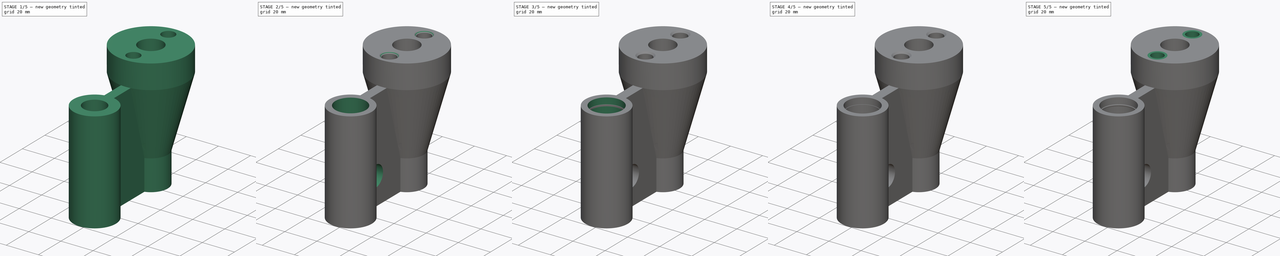
[diagram: build sequence overview — one tinted view per stage of 5, left to right]
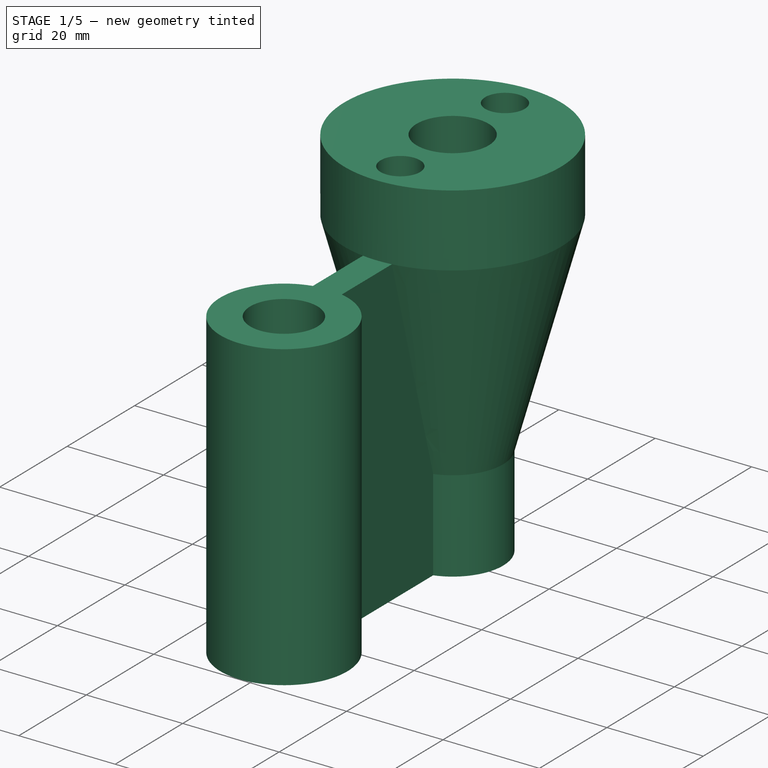
[diagram: stage 1 of 5 — iso view after this stage's code; geometry added in this stage tinted green]
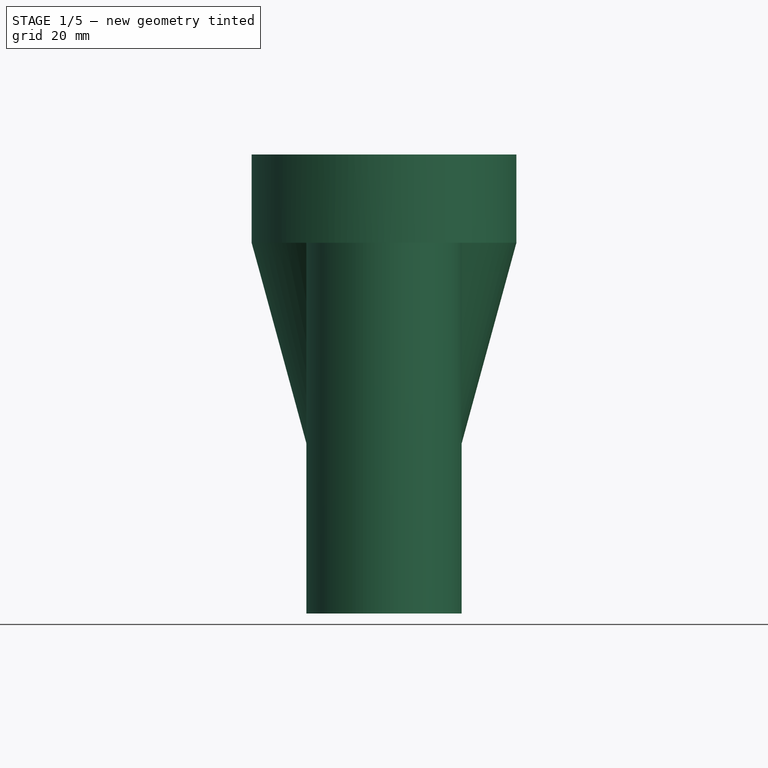
[diagram: stage 1 of 5 — front view after this stage's code; geometry added in this stage tinted green]
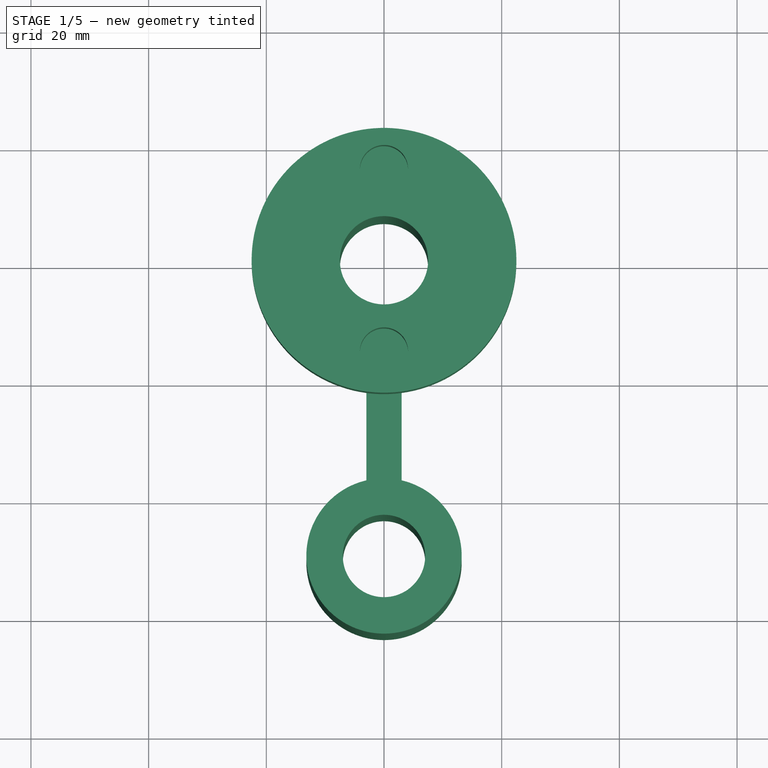
[diagram: stage 1 of 5 — top view after this stage's code; geometry added in this stage tinted green]
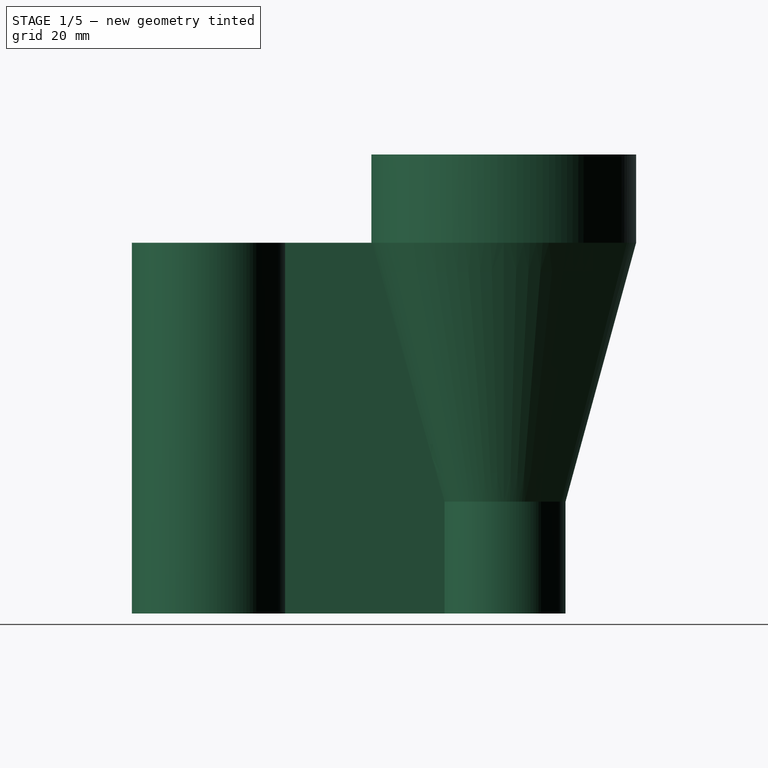
[diagram: stage 1 of 5 — right view after this stage's code; geometry added in this stage tinted green]
FCSTD DOCUMENT  (FreeCAD 0.16R5480 (Git))
Label: carriage_base_olive_idler
License: All rights reserved
LicenseURL: http://en.wikipedia.org/wiki/All_rights_reserved
objects: Sketcher::SketchObject×17, PartDesign::Pocket×8, PartDesign::Pad×6, PartDesign::Chamfer×3, PartDesign::Draft×2, PartDesign::Revolution×1
note: 52 computed .brp shape members not serialized (recipe doc carries the construction recipe); baked Part::Feature solids carry a one-line shape summary decoded from their .brp

FEATURE [Sketcher::SketchObject] Sketch
  Placement = pos=(0,0,0) rot=(1,0,0;1.5708rad)
  sketch-geometry (6):
    g0: LineSegment StartX=0 StartY=78 StartZ=0 EndX=22.5 EndY=78 EndZ=0
    g1: LineSegment StartX=22.5 StartY=78 StartZ=0 EndX=22.5 EndY=63 EndZ=0
    g2: LineSegment StartX=22.5 StartY=63 StartZ=0 EndX=10.5 EndY=19 EndZ=0
    g3: LineSegment StartX=10.5 StartY=0 StartZ=0 EndX=0 EndY=0 EndZ=0
    g4: LineSegment StartX=0 StartY=78 StartZ=0 EndX=0 EndY=0 EndZ=0
    g5: LineSegment StartX=10.5 StartY=19 StartZ=0 EndX=10.5 EndY=0 EndZ=0
  constraints (19):
    c: Vertical(g4)
    c: Vertical(g1)
    c: PointOnObject(g4,g-2)
    c: Coincident(g4,g-1)
    c: Coincident(g0,g4)
    c: Horizontal(g0)
    c: Coincident(g0,g1)
    c: Distance(g1) = 15
    c: Horizontal(g3)
    c: Coincident(g3,g4)
    c: PointOnObject(g3,g5)
    c: Vertical(g5)
    c: Coincident(g3,g5)
    c: Coincident(g2,g5)
    c: DistanceY(g4) = -78
    c: DistanceY(g5) = -19
    c: DistanceX(g0) = 22.5
    c: Distance(g3) = 10.5
    c: Coincident(g1,g2)
FEATURE [PartDesign::Revolution] Revolution
  Angle = 360
  Axis = (0,0,1)
  Base = (0,0,0)
  Placement = pos=(0,0,0) rot=(1,0,0;1.5708rad)
  ReferenceAxis = -> Sketch [V_Axis]
  Sketch = -> Sketch
FEATURE [Sketcher::SketchObject] Sketch001
  Placement = pos=(0,0,78) rot=(0,0,1;3.14159rad)
  Support = -> Revolution [Face1]
  sketch-geometry (3):
    g0: Circle [constr] CenterX=0 CenterY=0 CenterZ=0 NormalX=0 NormalY=0 NormalZ=1 Radius=15.5
    g1: Circle CenterX=0 CenterY=15.5 CenterZ=0 NormalX=0 NormalY=0 NormalZ=1 Radius=4.1
    g2: Circle CenterX=0 CenterY=-15.5 CenterZ=0 NormalX=0 NormalY=0 NormalZ=1 Radius=4.1
  constraints (8):
    c: Coincident(g0,g-1)
    c: Radius(g0) = 15.5
    c: Equal(g1,g2)
    c: Radius(g1) = 4.1
    c: PointOnObject(g2,g0)
    c: PointOnObject(g2,g-2)
    c: PointOnObject(g1,g0)
    c: PointOnObject(g1,g-2)
FEATURE [PartDesign::Pocket] Pocket
  Length = 12
  Placement = pos=(0,0,0) rot=(1,0,0;1.5708rad)
  Sketch = -> Sketch001
  Type = 0
FEATURE [Sketcher::SketchObject] Sketch002
  Placement = pos=(0,0,78) rot=(0,0,1;3.14159rad)
  Support = -> Pocket [Face1]
  sketch-geometry (1):
    g0: Circle CenterX=0 CenterY=0 CenterZ=0 NormalX=0 NormalY=0 NormalZ=1 Radius=7.5
  constraints (2):
    c: Coincident(g0,g-1)
    c: Radius(g0) = 7.5
FEATURE [PartDesign::Pocket] Pocket001
  Length = 5
  Placement = pos=(0,0,0) rot=(1,0,0;1.5708rad)
  Sketch = -> Sketch002
  Type = 1
FEATURE [Sketcher::SketchObject] Sketch004
  Placement = pos=(0,0,0) rot=(1,0,0;3.14159rad)
  Support = -> Pocket001 [Face9]
  sketch-geometry (5):
    g0: Circle CenterX=0 CenterY=50 CenterZ=0 NormalX=0 NormalY=0 NormalZ=1 Radius=7
    g1: LineSegment StartX=-3 StartY=37.1454 StartZ=0 EndX=-3 EndY=9 EndZ=0
    g2: LineSegment StartX=3 StartY=37.1454 StartZ=0 EndX=3 EndY=9 EndZ=0
    g3: LineSegment StartX=-3 StartY=9 StartZ=0 EndX=3 EndY=9 EndZ=0
    g4: ArcOfCircle CenterX=0 CenterY=50 CenterZ=0 NormalX=0 NormalY=0 NormalZ=1 Radius=13.2 StartAngle=4.94167 EndAngle=10.7663
  constraints (16):
    c: Coincident(g1,g3)
    c: Coincident(g2,g3)
    c: Radius(g0) = 7
    c: Vertical(g2)
    c: Vertical(g1)
    c: DistanceX(g-1,g1) = -3
    c: Horizontal(g3)
    c: Distance(g3) = 6
    c: DistanceY(g-1,g2) = 9
    c: Radius(g4) = 13.2
    c: Coincident(g0,g4)
    c: PointOnObject(g4,g1)
    c: Coincident(g2,g4)
    c: DistanceY(g-1,g0) = 50
    c: Coincident(g1,g4)
    c: PointOnObject(g0,g-2)
FEATURE [PartDesign::Pad] Pad
  Length = 63
  Length2 = 100
  Placement = pos=(0,0,0) rot=(1,0,0;1.5708rad)
  Reversed = true
  Sketch = -> Sketch004
  Type = 0
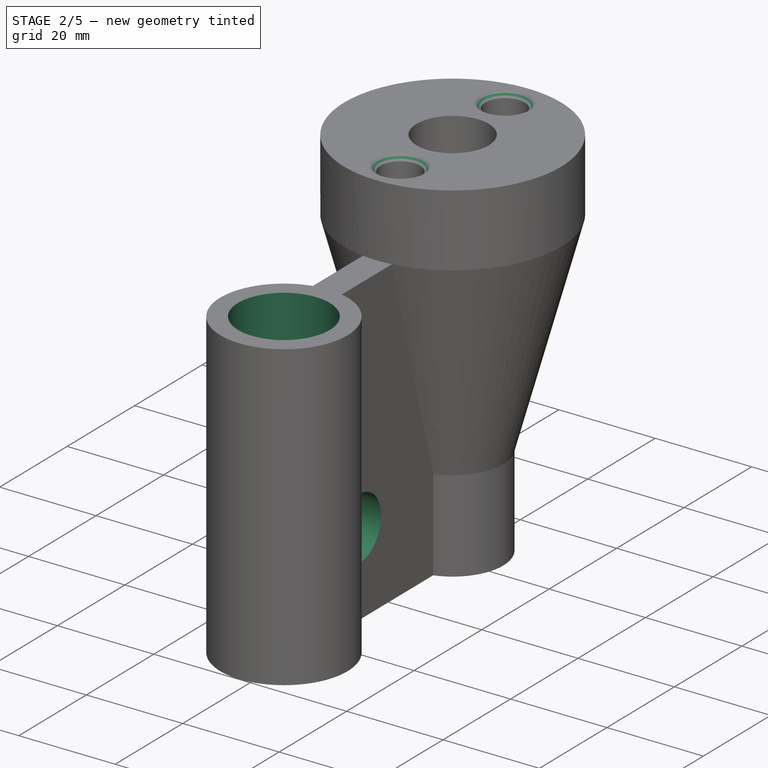
[diagram: stage 2 of 5 — iso view after this stage's code; geometry added in this stage tinted green]
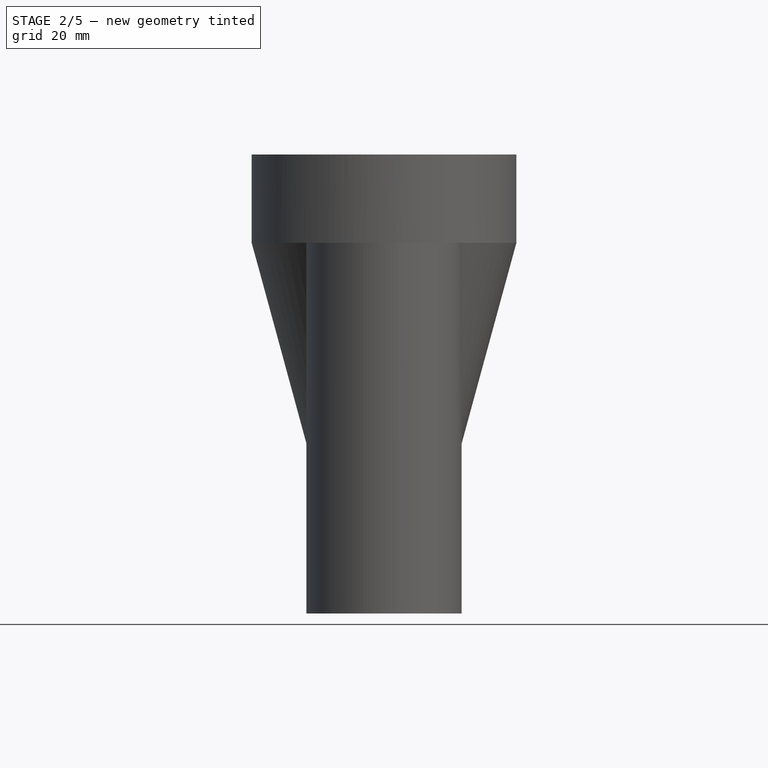
[diagram: stage 2 of 5 — front view after this stage's code; geometry added in this stage tinted green]
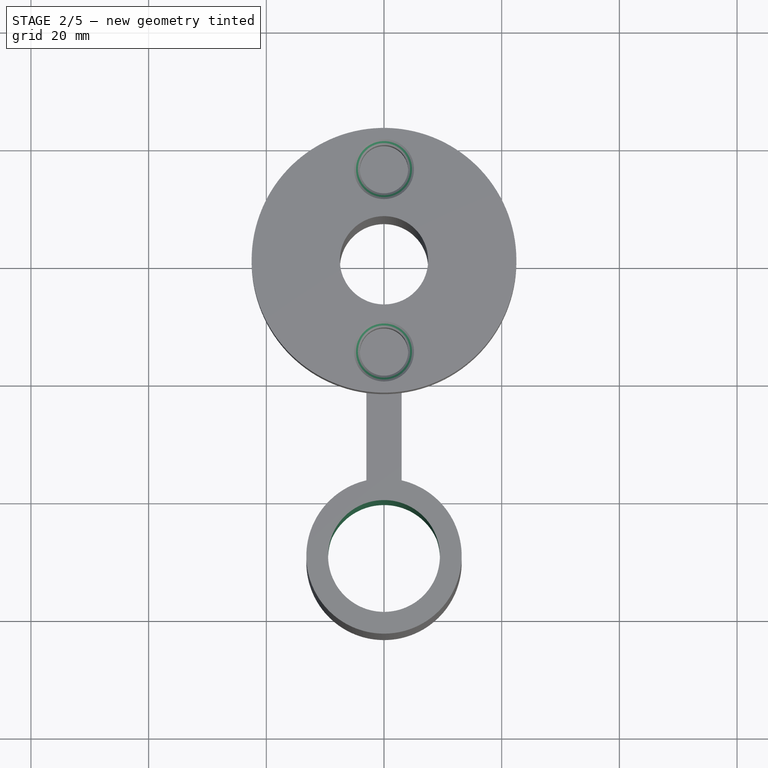
[diagram: stage 2 of 5 — top view after this stage's code; geometry added in this stage tinted green]
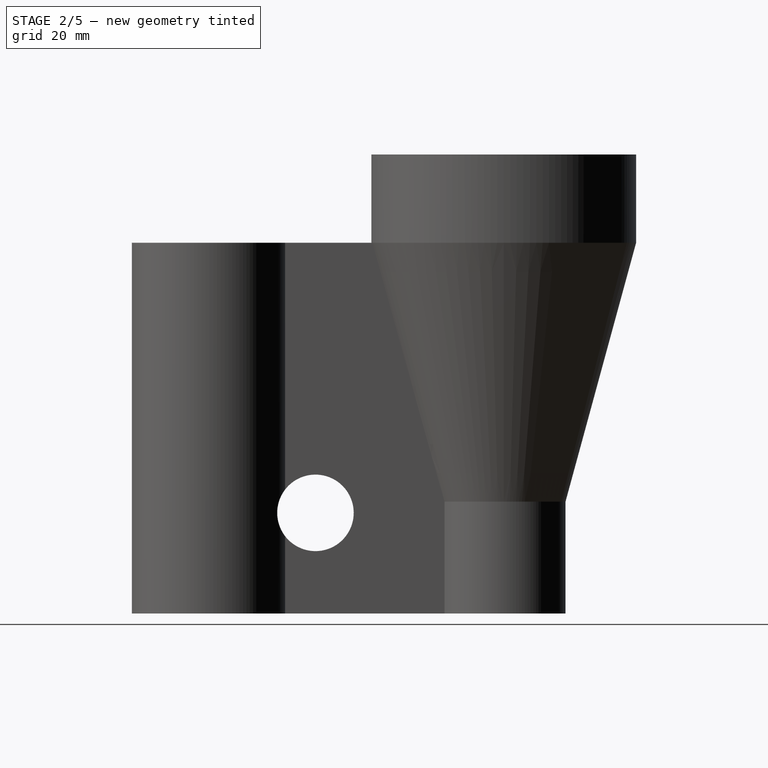
[diagram: stage 2 of 5 — right view after this stage's code; geometry added in this stage tinted green]
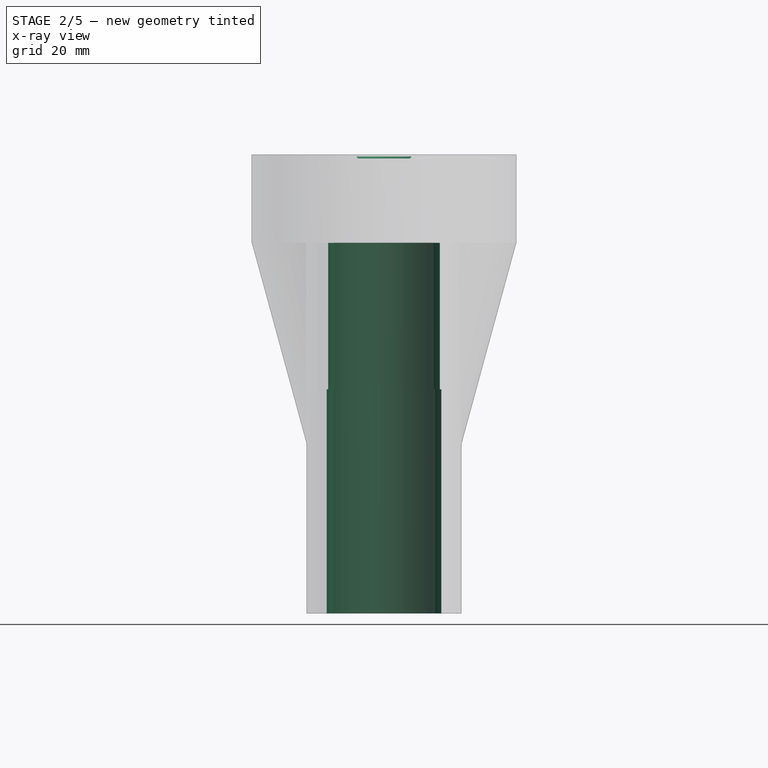
[diagram: stage 2 of 5 — x-ray composite at the front view; earlier geometry ghosted, this stage's added geometry solid]
FEATURE [Sketcher::SketchObject] Sketch005
  Placement = pos=(0,0,63) rot=(0,0,1;3.14159rad)
  Support = -> Pad [Face7]
  sketch-geometry (1):
    g0: Circle CenterX=0 CenterY=50 CenterZ=0 NormalX=0 NormalY=0 NormalZ=1 Radius=9.75
  constraints (3):
    c: Radius(g0) = 9.75
    c: PointOnObject(g0,g-2)
    c: DistanceY(g-1,g0) = 50
FEATURE [PartDesign::Pocket] Pocket002
  Length = 5
  Placement = pos=(0,0,0) rot=(1,0,0;1.5708rad)
  Sketch = -> Sketch005
  Type = 1
FEATURE [Sketcher::SketchObject] Sketch007
  Placement = pos=(-3,0,0) rot=(0.707107,0,-0.707107;3.14159rad)
  Support = -> Pocket002 [Face13]
  sketch-geometry (1):
    g0: Circle CenterX=-17.1 CenterY=32 CenterZ=0 NormalX=0 NormalY=0 NormalZ=1 Radius=6.5
  constraints (3):
    c: DistanceY(g-1,g0) = 32
    c: Radius(g0) = 6.5
    c: DistanceX(g-2,g0) = -17.1
FEATURE [PartDesign::Pocket] Pocket003
  Length = 22
  Midplane = true
  Placement = pos=(0,0,0) rot=(1,0,0;1.5708rad)
  Sketch = -> Sketch007
  Type = 0
FEATURE [PartDesign::Chamfer] Chamfer
  Base = -> Pocket003 [Edge2,Edge3]
  Placement = pos=(0,0,0) rot=(1,0,0;1.5708rad)
  Size = 1
FEATURE [Sketcher::SketchObject] Sketch008
  ExternalGeometry = -> [Chamfer]
  Placement = pos=(0,0,63) rot=(0,0,1;3.14159rad)
  Support = -> Chamfer [Face8]
  sketch-geometry (2):
    g0: Circle CenterX=0 CenterY=50 CenterZ=0 NormalX=0 NormalY=0 NormalZ=1 Radius=9.5
    g1: Circle CenterX=0 CenterY=50 CenterZ=0 NormalX=0 NormalY=0 NormalZ=1 Radius=11
  constraints (4):
    c: Coincident(g0,g-3)
    c: Radius(g0) = 9.5
    c: Coincident(g0,g1)
    c: Radius(g1) = 11
FEATURE [PartDesign::Pad] Pad001
  Length = 24.9
  Length2 = 100
  Placement = pos=(0,0,0) rot=(1,0,0;1.5708rad)
  Reversed = true
  Sketch = -> Sketch008
  Type = 0
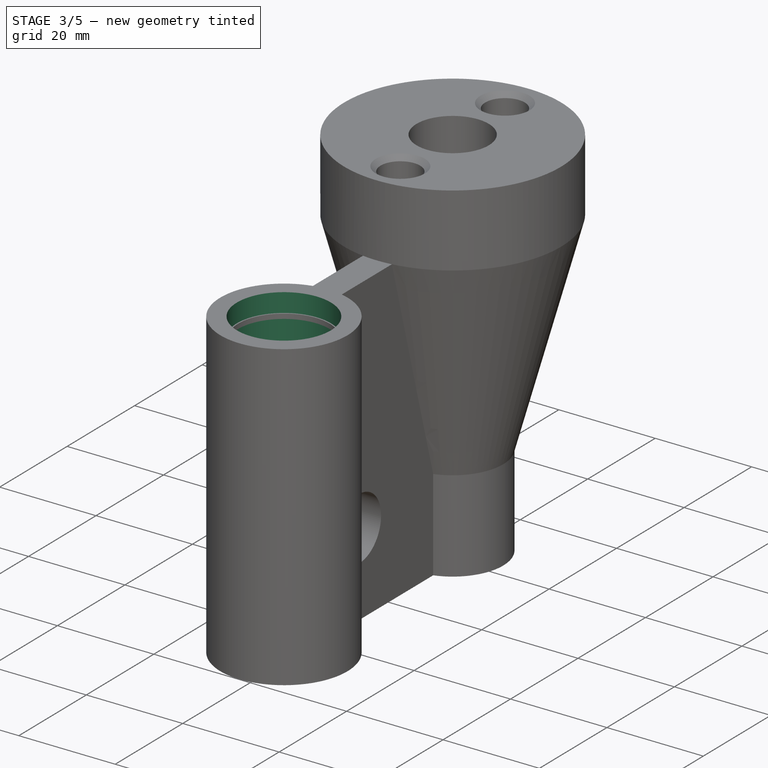
[diagram: stage 3 of 5 — iso view after this stage's code; geometry added in this stage tinted green]
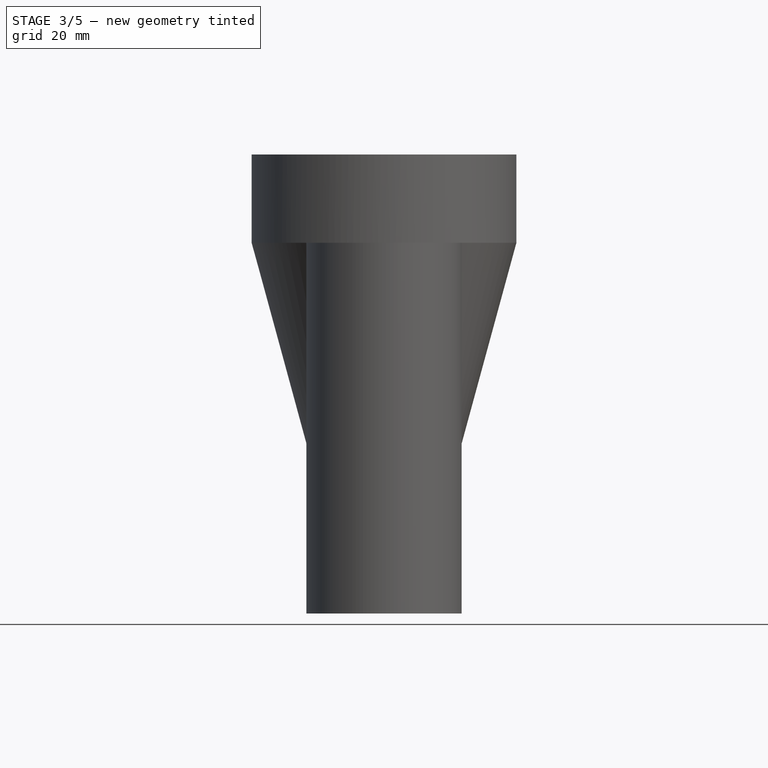
[diagram: stage 3 of 5 — front view after this stage's code; geometry added in this stage tinted green]
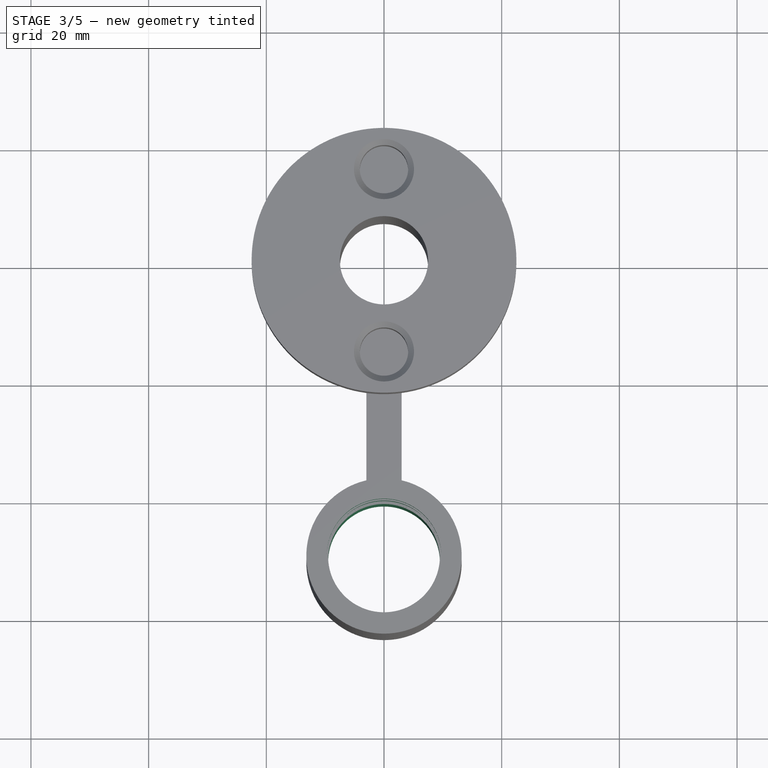
[diagram: stage 3 of 5 — top view after this stage's code; geometry added in this stage tinted green]
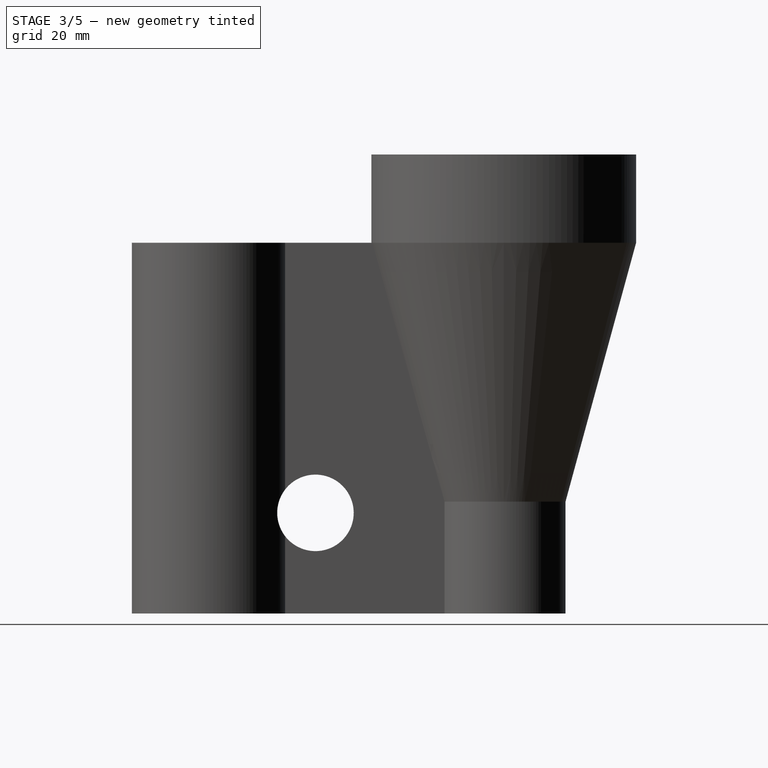
[diagram: stage 3 of 5 — right view after this stage's code; geometry added in this stage tinted green]
FEATURE [Sketcher::SketchObject] Sketch026
  ExternalGeometry = -> [Pad001]
  Placement = pos=(0,0,63) rot=(0,0,1;3.14159rad)
  Support = -> Pad001 [Face6]
  sketch-geometry (1):
    g0: Circle CenterX=0 CenterY=50 CenterZ=0 NormalX=0 NormalY=0 NormalZ=1 Radius=9.75
  constraints (2):
    c: Coincident(g0,g-3)
    c: Radius(g0) = 9.75
FEATURE [PartDesign::Pocket] Pocket004
  Length = 24.5
  Placement = pos=(0,0,0) rot=(1,0,0;1.5708rad)
  Sketch = -> Sketch026
  Type = 0
FEATURE [Sketcher::SketchObject] Sketch027
  ExternalGeometry = -> [Pocket004]
  Placement = pos=(0,0,38.5) rot=(0,0,1;3.14159rad)
  Support = -> Pocket004 [Face2]
  sketch-geometry (2):
    g0: Circle CenterX=0 CenterY=50 CenterZ=0 NormalX=0 NormalY=0 NormalZ=1 Radius=10
    g1: Circle CenterX=0 CenterY=50 CenterZ=0 NormalX=0 NormalY=0 NormalZ=1 Radius=9.5
  constraints (4):
    c: Coincident(g0,g1)
    c: Coincident(g0,g-3)
    c: Radius(g1) = 9.5
    c: Radius(g0) = 10
FEATURE [Sketcher::SketchObject] Sketch028
  Placement = pos=(0,0,78) rot=(0,0,1;3.14159rad)
  sketch-geometry (1):
    g0: Circle CenterX=0 CenterY=50 CenterZ=0 NormalX=0 NormalY=0 NormalZ=1 Radius=9.75
  constraints (1):
    c: Radius(g0) = 9.75
FEATURE [Sketcher::SketchObject] Sketch029
  ExternalGeometry = -> [Pocket004]
  Placement = pos=(0,0,63) rot=(0,0,1;3.14159rad)
  Support = -> Pocket004 [Face8]
  sketch-geometry (2):
    g0: Circle CenterX=0 CenterY=50 CenterZ=0 NormalX=0 NormalY=0 NormalZ=1 Radius=10
    g1: Circle CenterX=0 CenterY=50 CenterZ=0 NormalX=0 NormalY=0 NormalZ=1 Radius=9.5
  constraints (4):
    c: Coincident(g0,g1)
    c: Coincident(g0,g-3)
    c: Radius(g1) = 9.5
    c: Radius(g0) = 10
FEATURE [PartDesign::Pad] Pad002
  Length = 4.9
  Length2 = 100
  Placement = pos=(0,0,0) rot=(1,0,0;1.5708rad)
  Reversed = true
  Sketch = -> Sketch029
  Type = 0
FEATURE [Sketcher::SketchObject] Sketch030
  ExternalGeometry = -> [Pad002]
  Placement = pos=(0,0,63) rot=(0,0,1;3.14159rad)
  Support = -> Pad002 [Face15]
  sketch-geometry (1):
    g0: Circle CenterX=0 CenterY=50 CenterZ=0 NormalX=0 NormalY=0 NormalZ=1 Radius=9.75
  constraints (2):
    c: Coincident(g0,g-3)
    c: Radius(g0) = 9.75
FEATURE [PartDesign::Pocket] Pocket005
  Length = 3.9
  Placement = pos=(0,0,0) rot=(1,0,0;1.5708rad)
  Sketch = -> Sketch030
  Type = 0
FEATURE [Sketcher::SketchObject] Sketch031
  ExternalGeometry = -> [Pocket005]
  Placement = pos=(0,0,0) rot=(1,0,0;3.14159rad)
  Support = -> Pocket005 [Face7]
  sketch-geometry (2):
    g0: Circle CenterX=0 CenterY=50 CenterZ=0 NormalX=0 NormalY=0 NormalZ=1 Radius=10
    g1: Circle CenterX=0 CenterY=50 CenterZ=0 NormalX=0 NormalY=0 NormalZ=1 Radius=9.5
  constraints (4):
    c: Coincident(g0,g1)
    c: Coincident(g0,g-3)
    c: Radius(g1) = 9.5
    c: Radius(g0) = 10
FEATURE [PartDesign::Pad] Pad003
  Length = 24.9
  Length2 = 100
  Placement = pos=(0,0,0) rot=(1,0,0;1.5708rad)
  Reversed = true
  Sketch = -> Sketch031
  Type = 0
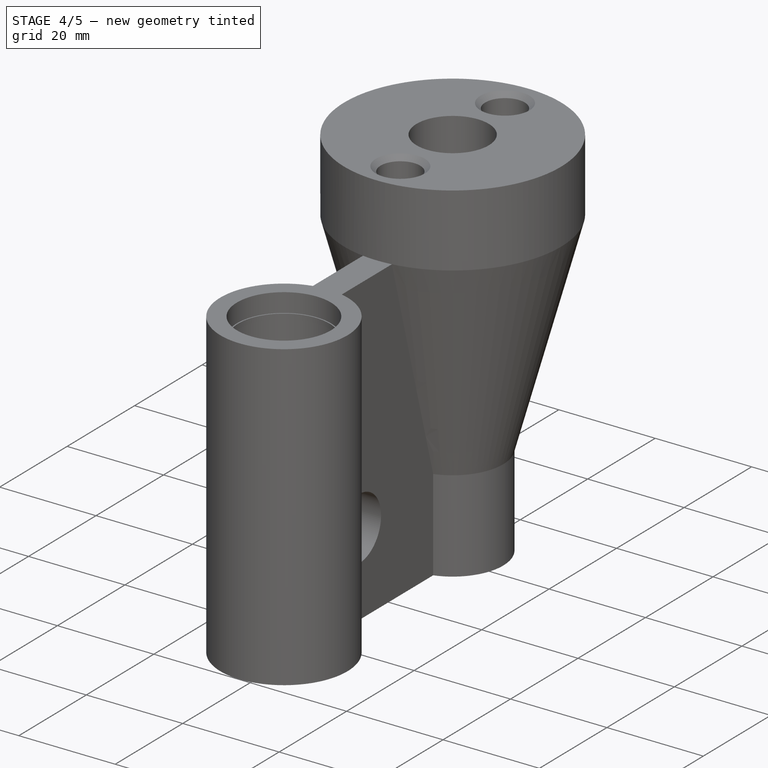
[diagram: stage 4 of 5 — iso view after this stage's code; geometry added in this stage tinted green]
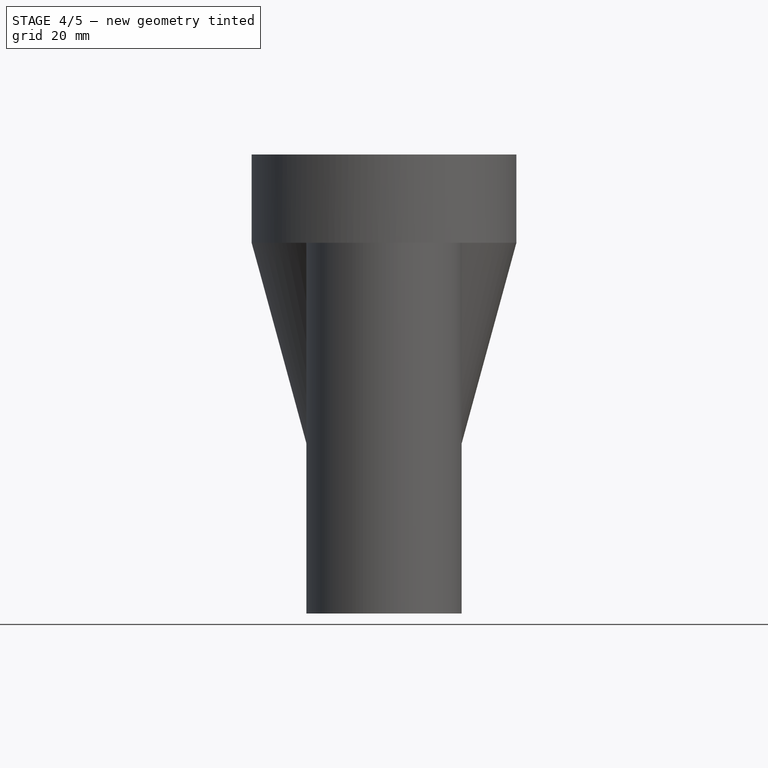
[diagram: stage 4 of 5 — front view after this stage's code; geometry added in this stage tinted green]
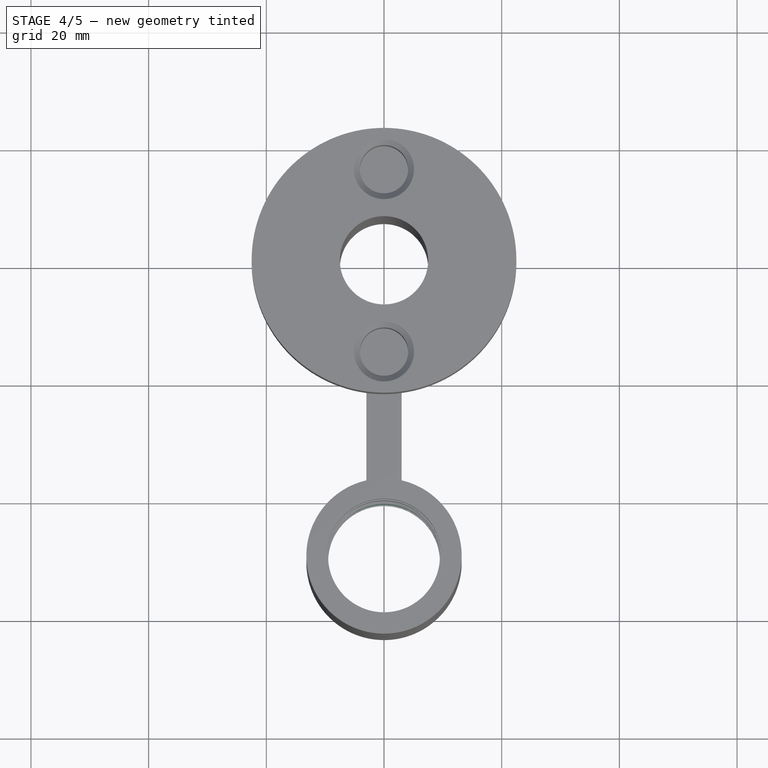
[diagram: stage 4 of 5 — top view after this stage's code; geometry added in this stage tinted green]
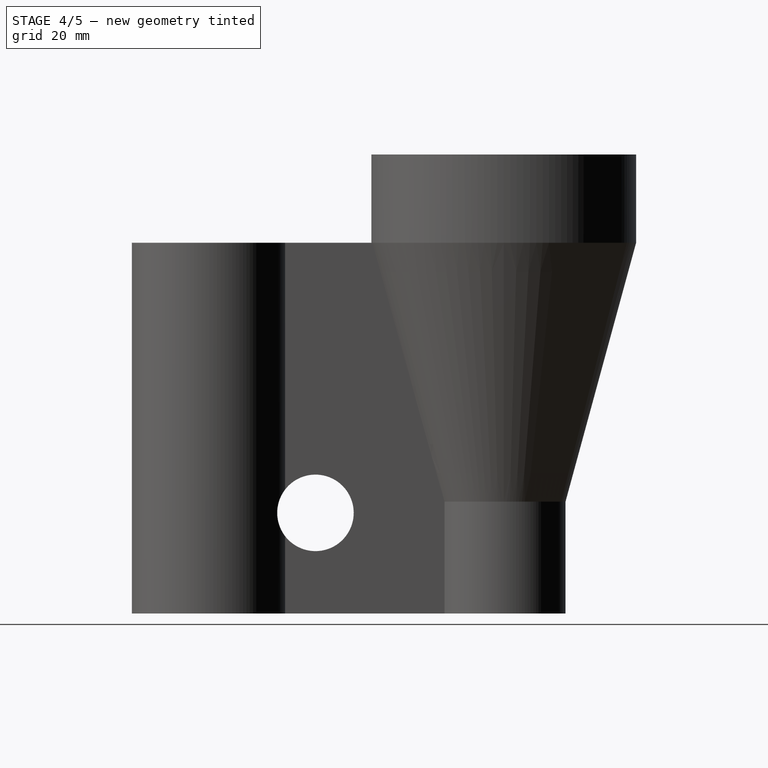
[diagram: stage 4 of 5 — right view after this stage's code; geometry added in this stage tinted green]
FEATURE [Sketcher::SketchObject] Sketch036
  ExternalGeometry = -> [Pad003]
  Placement = pos=(0,0,0) rot=(1,0,0;3.14159rad)
  Support = -> Pad003 [Face15]
  sketch-geometry (1):
    g0: Circle CenterX=0 CenterY=50 CenterZ=0 NormalX=0 NormalY=0 NormalZ=1 Radius=9.75
  constraints (2):
    c: Coincident(g0,g-3)
    c: Radius(g0) = 9.75
FEATURE [PartDesign::Pocket] Pocket006
  Length = 24.5
  Placement = pos=(0,0,0) rot=(1,0,0;1.5708rad)
  Sketch = -> Sketch036
  Type = 0
FEATURE [Sketcher::SketchObject] Sketch037
  ExternalGeometry = -> [Pocket006]
  Placement = pos=(0,0,0) rot=(1,0,0;3.14159rad)
  Support = -> Pocket006 [Face17]
  sketch-geometry (2):
    g0: Circle CenterX=0 CenterY=50 CenterZ=0 NormalX=0 NormalY=0 NormalZ=1 Radius=10
    g1: Circle CenterX=0 CenterY=50 CenterZ=0 NormalX=0 NormalY=0 NormalZ=1 Radius=9.5
  constraints (4):
    c: Coincident(g0,g1)
    c: Coincident(g0,g-3)
    c: Radius(g1) = 9.5
    c: Radius(g0) = 10
FEATURE [PartDesign::Pad] Pad004
  Length = 4.9
  Length2 = 100
  Placement = pos=(0,0,0) rot=(1,0,0;1.5708rad)
  Reversed = true
  Sketch = -> Sketch037
  Type = 0
FEATURE [Sketcher::SketchObject] Sketch038
  ExternalGeometry = -> [Pad004]
  Placement = pos=(0,0,0) rot=(1,0,0;3.14159rad)
  Support = -> Pad004 [Face25]
  sketch-geometry (1):
    g0: Circle CenterX=0 CenterY=50 CenterZ=0 NormalX=0 NormalY=0 NormalZ=1 Radius=9.75
  constraints (2):
    c: Coincident(g0,g-3)
    c: Radius(g0) = 9.75
FEATURE [PartDesign::Pocket] Pocket007
  Length = 3.9
  Placement = pos=(0,0,0) rot=(1,0,0;1.5708rad)
  Sketch = -> Sketch038
  Type = 0
FEATURE [PartDesign::Chamfer] Chamfer001
  Base = -> Pocket007 [Edge14,Edge11,Edge1,Edge3]
  Placement = pos=(0,0,0) rot=(1,0,0;1.5708rad)
  Size = 0.15
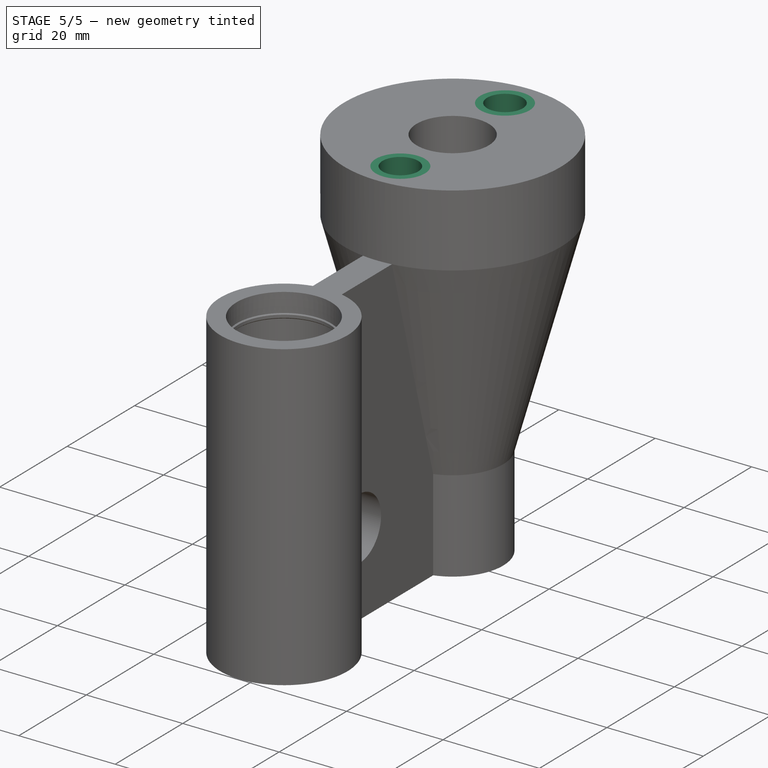
[diagram: stage 5 of 5 — iso view after this stage's code; geometry added in this stage tinted green]
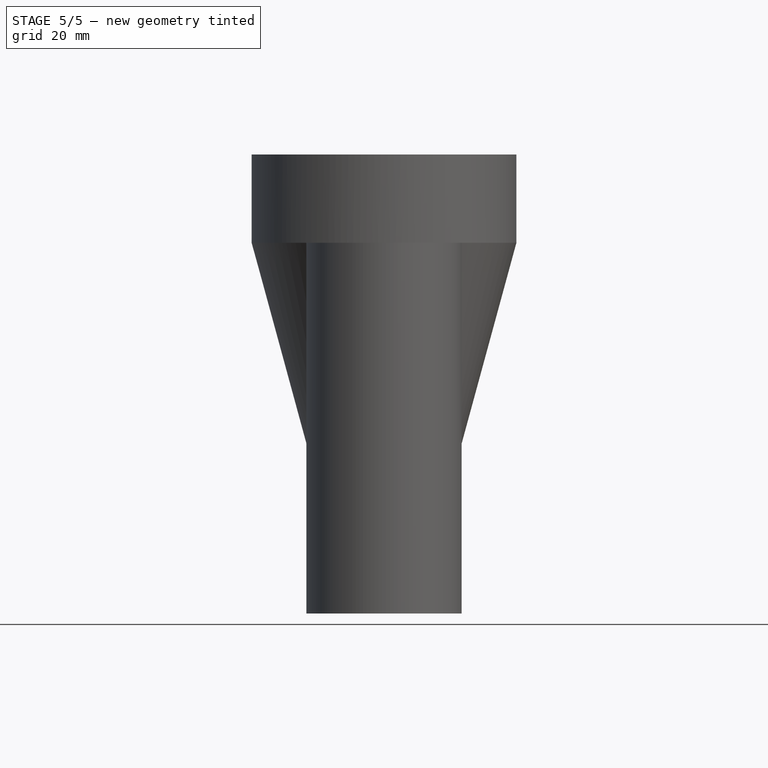
[diagram: stage 5 of 5 — front view after this stage's code; geometry added in this stage tinted green]
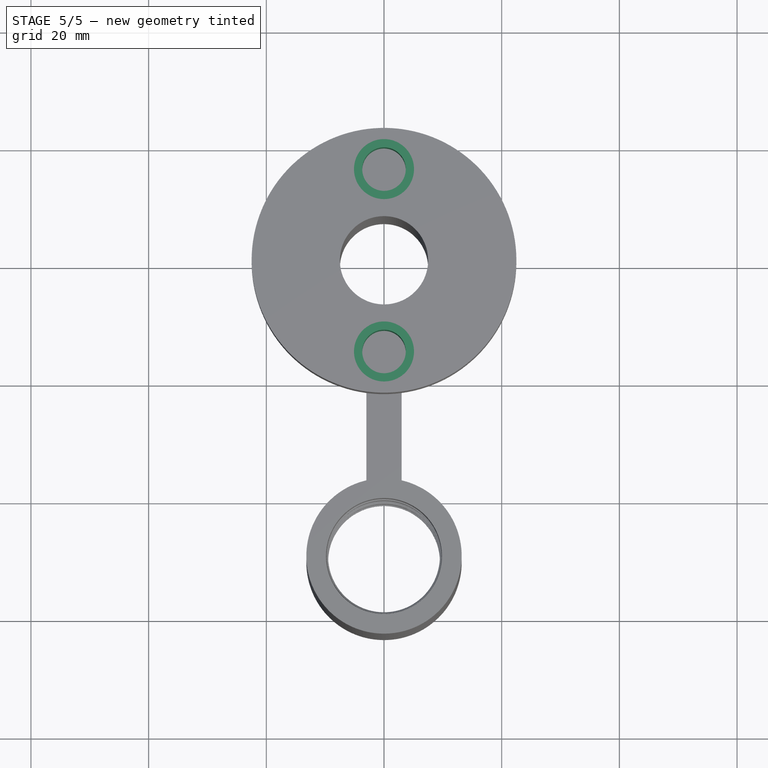
[diagram: stage 5 of 5 — top view after this stage's code; geometry added in this stage tinted green]
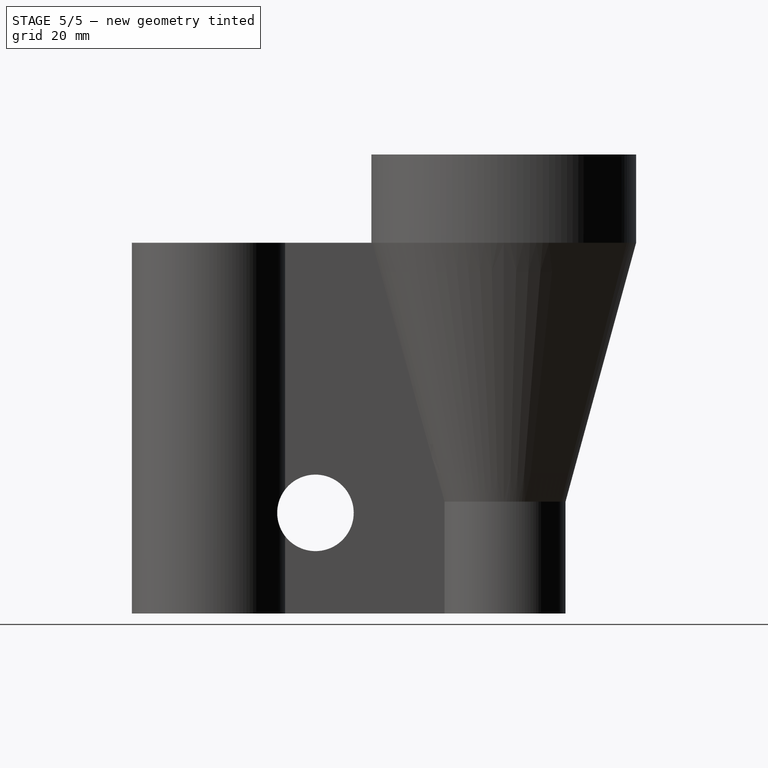
[diagram: stage 5 of 5 — right view after this stage's code; geometry added in this stage tinted green]
FEATURE [PartDesign::Chamfer] Chamfer002
  Base = -> Chamfer001 [Edge16,Edge14,Edge36,Edge58]
  Placement = pos=(0,0,0) rot=(1,0,0;1.5708rad)
  Size = 0.2
FEATURE [PartDesign::Draft] Draft
  Angle = 1.5
  Base = -> Chamfer002 [Face38]
  NeutralPlane = -> Chamfer002 [Face42]
  Placement = pos=(0,0,0) rot=(1,0,0;1.5708rad)
  PullDirection = -> Chamfer002 [Edge81]
  Reversed = true
FEATURE [PartDesign::Draft] Draft001
  Angle = 1.5
  Base = -> Draft [Face10]
  NeutralPlane = -> Draft [Face8]
  Placement = pos=(0,0,0) rot=(1,0,0;1.5708rad)
  PullDirection = -> Draft [Edge18]
  Reversed = true
FEATURE [Sketcher::SketchObject] Sketch039
  ExternalGeometry = -> [Draft001]
  Placement = pos=(0,0,78) rot=(0,0,1;3.14159rad)
  Support = -> Draft001 [Face29]
  sketch-geometry (4):
    g0: Circle CenterX=0 CenterY=15.5 CenterZ=0 NormalX=0 NormalY=0 NormalZ=1 Radius=3.7
    g1: Circle CenterX=0 CenterY=-15.5 CenterZ=0 NormalX=0 NormalY=0 NormalZ=1 Radius=3.7
    g2: Circle CenterX=0 CenterY=-15.5 CenterZ=0 NormalX=0 NormalY=0 NormalZ=1 Radius=6
    g3: Circle CenterX=0 CenterY=15.5 CenterZ=0 NormalX=0 NormalY=0 NormalZ=1 Radius=6
  constraints (8):
    c: Coincident(g0,g3)
    c: Coincident(g0,g-3)
    c: Coincident(g1,g2)
    c: Coincident(g1,g-4)
    c: Radius(g1) = 3.7
    c: Equal(g1,g0)
    c: Equal(g3,g2)
    c: Radius(g3) = 6
FEATURE [PartDesign::Pad] Pad005
  Length = 15
  Length2 = 100
  Placement = pos=(0,0,0) rot=(1,0,0;1.5708rad)
  Reversed = true
  Sketch = -> Sketch039
  Type = 0
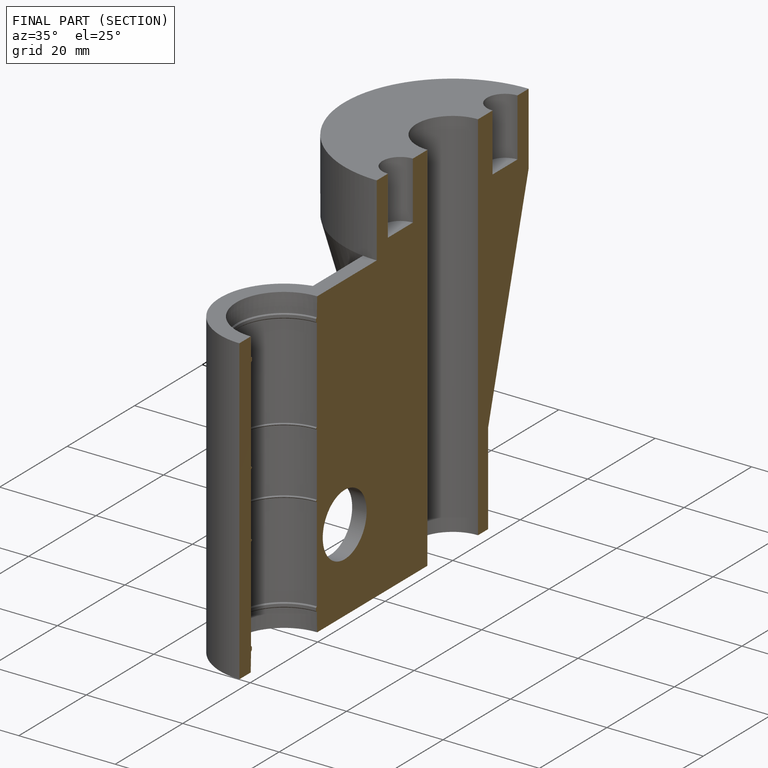
[diagram: finished part — half-section view (interior)]
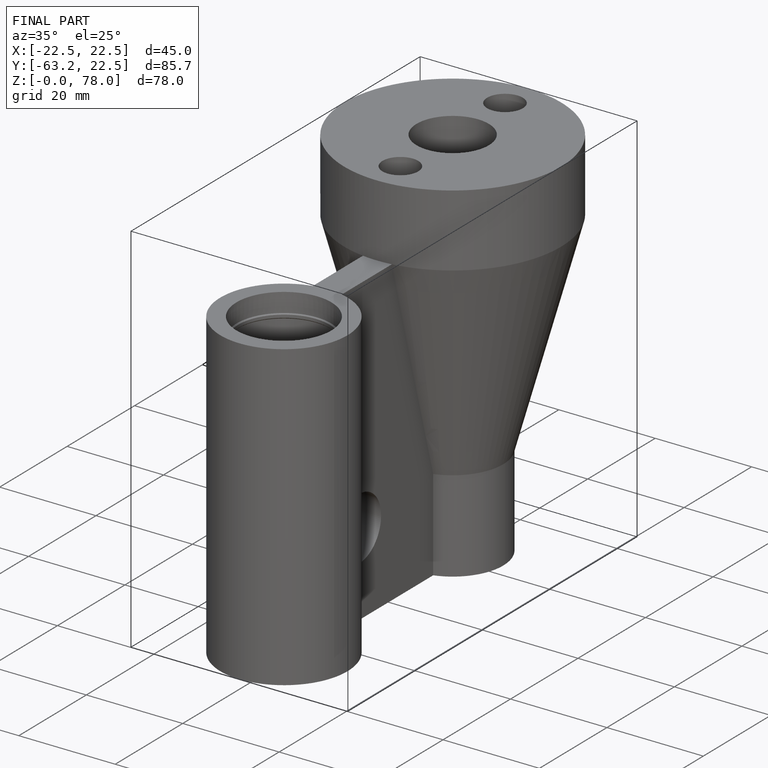
[diagram: finished part — iso view with bounding-box wireframe]
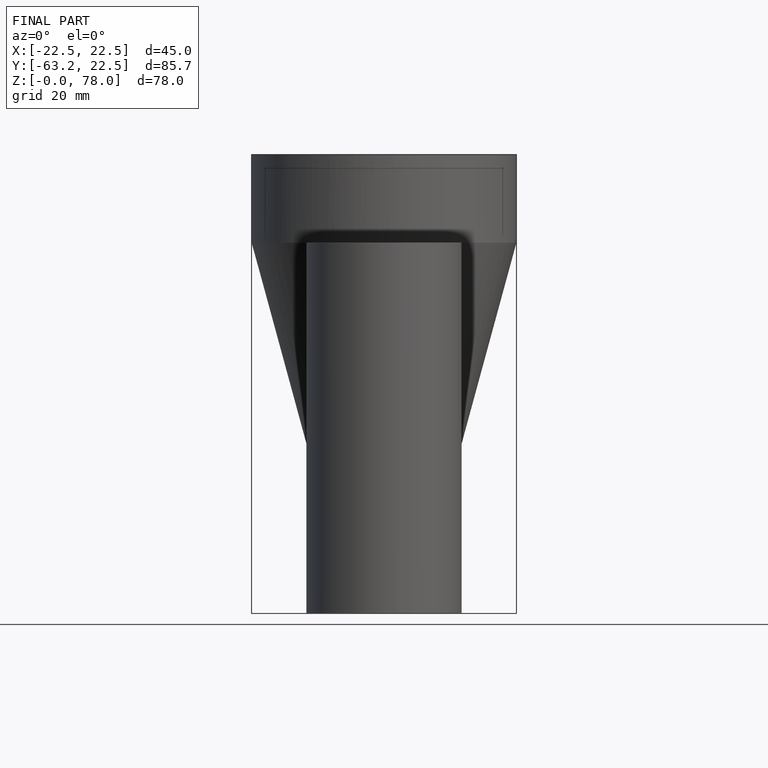
[diagram: finished part — front view with bounding-box wireframe]
